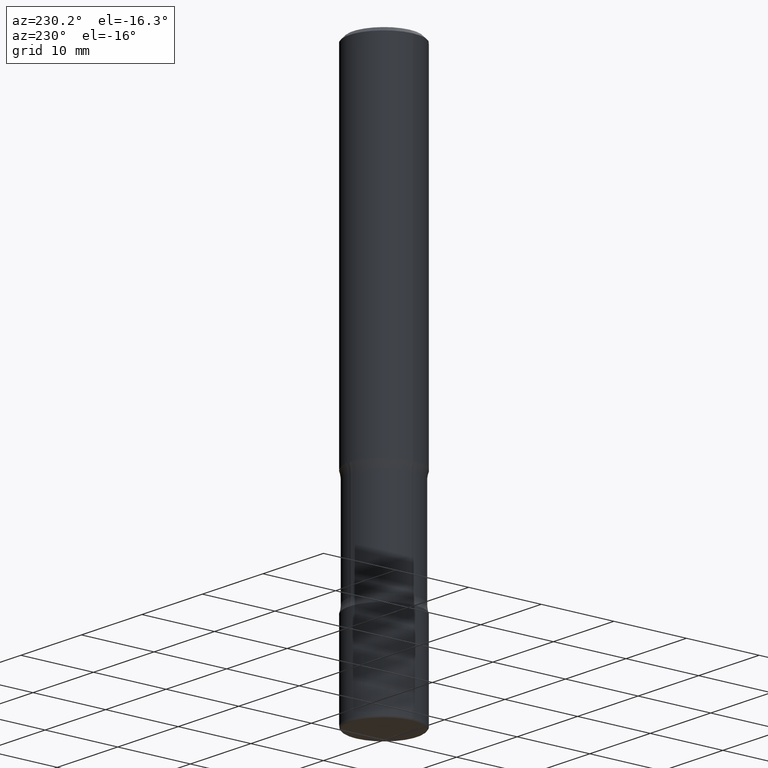
[diagram: clean part render]
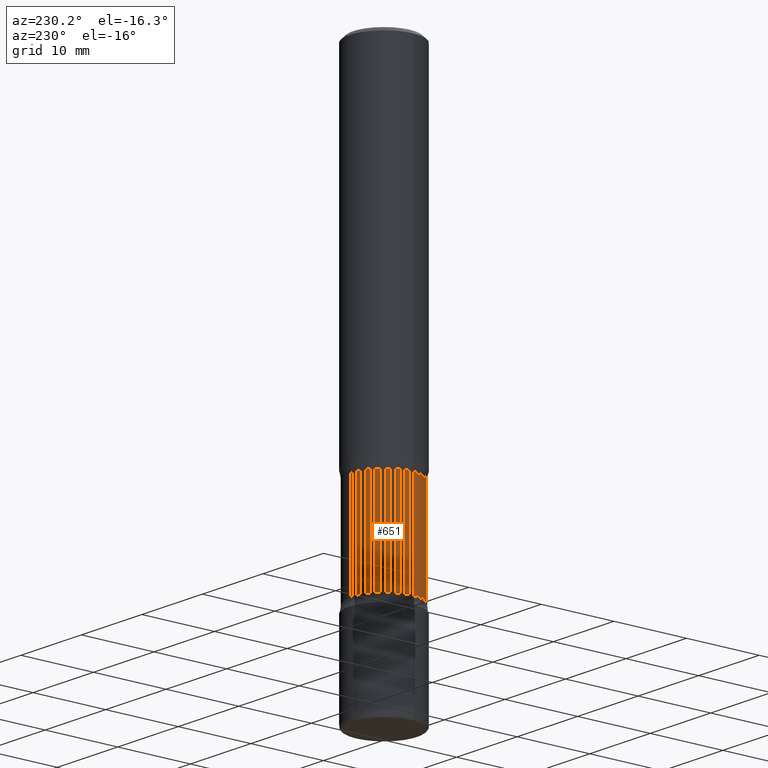
[diagram: same view with one face highlighted and labeled with its STEP entity id]
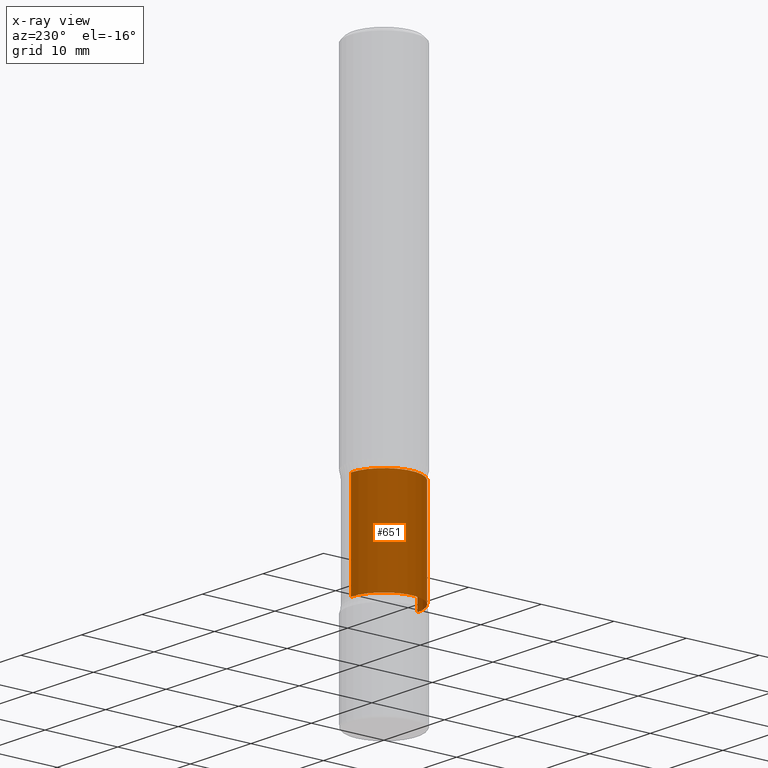
[diagram: x-ray of the same camera — body ghosted, the highlighted face saturated]
A machine part, auxiliary view. The second image highlights one B-rep face of the part: STEP entity #651.
The next image is the same camera in x-ray: the body ghosted, the highlighted face saturated — about 0% of this face is hidden behind the body in this view.
In plain terms, the highlighted cylindrical surface (partial cylindrical patch) has radius 4.572 mm, axis along (0, -0, -1).
Its self-contained STEP definition (entity closure, byte-faithful):
#21 = DIRECTION ( 'NONE',  ( 2.552515368040489607E-29, -3.338184569554352070E-15, -1.000000000000000000 ) ) ;
#41 = EDGE_CURVE ( 'NONE', #386, #255, #533, .T. ) ;
#108 = DIRECTION ( 'NONE',  ( 2.552515368040489607E-29, -3.338184569554351675E-15, -1.000000000000000000 ) ) ;
#125 = ORIENTED_EDGE ( 'NONE', *, *, #602, .T. ) ;
#137 = CARTESIAN_POINT ( 'NONE',  ( 1.256933281983588277E-15, 0.1799999999999915001, -2.457353194726920709 ) ) ;
#140 = CARTESIAN_POINT ( 'NONE',  ( -1.260616507090458127E-15, -0.1800000000000086253, -2.457353194726919376 ) ) ;
#156 = VECTOR ( 'NONE', #556, 39.37007874015748143 ) ;
#162 = DIRECTION ( 'NONE',  ( 6.982962677686266711E-15, 1.000000000000000000, -3.035386659626958343E-15 ) ) ;
#202 = FACE_OUTER_BOUND ( 'NONE', #329, .T. ) ;
#228 = EDGE_CURVE ( 'NONE', #386, #264, #553, .T. ) ;
#234 = ORIENTED_EDGE ( 'NONE', *, *, #228, .T. ) ;
#255 = VERTEX_POINT ( 'NONE', #140 ) ;
#264 = VERTEX_POINT ( 'NONE', #634 ) ;
#303 = DIRECTION ( 'NONE',  ( 2.552515368040489607E-29, -3.338184569554351675E-15, -1.000000000000000000 ) ) ;
#327 = DIRECTION ( 'NONE',  ( 6.982962677686266711E-15, 1.000000000000000000, -3.035386659626958343E-15 ) ) ;
#329 = EDGE_LOOP ( 'NONE', ( #346, #234, #125, #414 ) ) ;
#346 = ORIENTED_EDGE ( 'NONE', *, *, #41, .F. ) ;
#373 = DIRECTION ( 'NONE',  ( 2.552515368040489607E-29, -3.338184569554351675E-15, -1.000000000000000000 ) ) ;
#376 = CYLINDRICAL_SURFACE ( 'NONE', #716, 0.1800000000000000488 ) ;
#386 = VERTEX_POINT ( 'NONE', #780 ) ;
#414 = ORIENTED_EDGE ( 'NONE', *, *, #456, .F. ) ;
#418 = LINE ( 'NONE', #428, #156 ) ;
#428 = CARTESIAN_POINT ( 'NONE',  ( 1.256933281983602082E-15, 0.1799999999999896683, -2.994630931690645426 ) ) ;
#435 = DIRECTION ( 'NONE',  ( 6.982962677686265133E-15, 1.000000000000000000, -3.035386659626957554E-15 ) ) ;
#456 = EDGE_CURVE ( 'NONE', #255, #768, #594, .T. ) ;
#516 = AXIS2_PLACEMENT_3D ( 'NONE', #557, #303, #435 ) ;
#533 = LINE ( 'NONE', #578, #689 ) ;
#553 = CIRCLE ( 'NONE', #516, 0.1800000000000001044 ) ;
#556 = DIRECTION ( 'NONE',  ( 2.552515368040489607E-29, -3.338184569554352070E-15, -1.000000000000000000 ) ) ;
#557 = CARTESIAN_POINT ( 'NONE',  ( 4.627206536294903060E-29, -6.784700898439779680E-15, -1.917646805273080179 ) ) ;
#578 = CARTESIAN_POINT ( 'NONE',  ( -1.234889639598802207E-15, -0.1800000000000104294, -2.994630931690644093 ) ) ;
#585 = CARTESIAN_POINT ( 'NONE',  ( 6.004815389605475461E-29, -8.586340439804479768E-15, -2.457353194726920265 ) ) ;
#594 = CIRCLE ( 'NONE', #679, 0.1800000000000000488 ) ;
#602 = EDGE_CURVE ( 'NONE', #264, #768, #418, .T. ) ;
#634 = CARTESIAN_POINT ( 'NONE',  ( 1.256933281983574866E-15, 0.1799999999999933042, -1.917646805273080624 ) ) ;
#640 = CARTESIAN_POINT ( 'NONE',  ( 7.376225070111397193E-29, -1.037987269090186670E-14, -2.994630931690644982 ) ) ;
#651 = ADVANCED_FACE ( 'NONE', ( #202 ), #376, .T. ) ;
#679 = AXIS2_PLACEMENT_3D ( 'NONE', #585, #108, #162 ) ;
#689 = VECTOR ( 'NONE', #21, 39.37007874015748143 ) ;
#716 = AXIS2_PLACEMENT_3D ( 'NONE', #640, #373, #327 ) ;
#768 = VERTEX_POINT ( 'NONE', #137 ) ;
#780 = CARTESIAN_POINT ( 'NONE',  ( -1.260616507090473904E-15, -0.1800000000000068767, -1.917646805273079513 ) ) ;